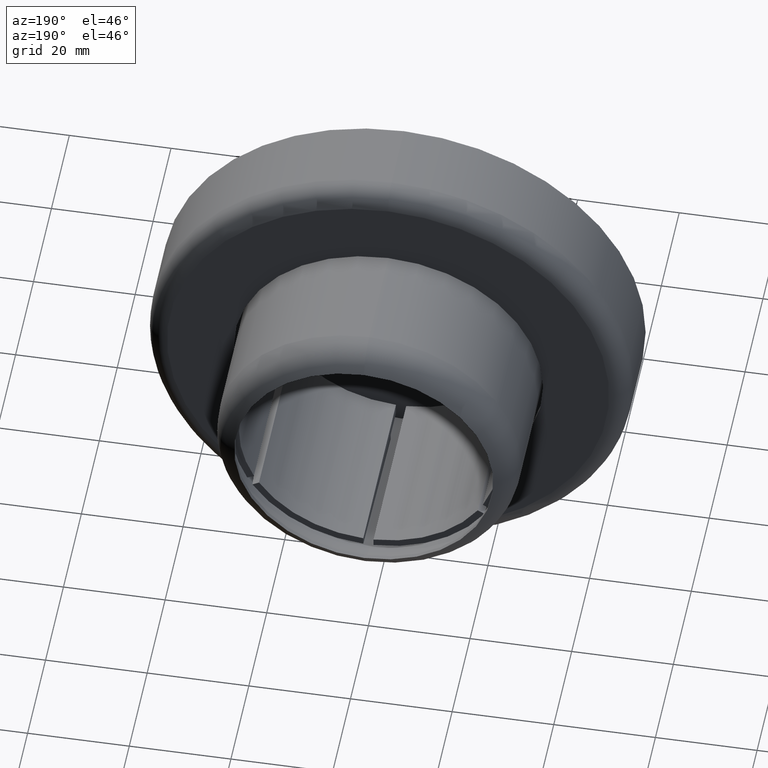
[diagram: clean part render]
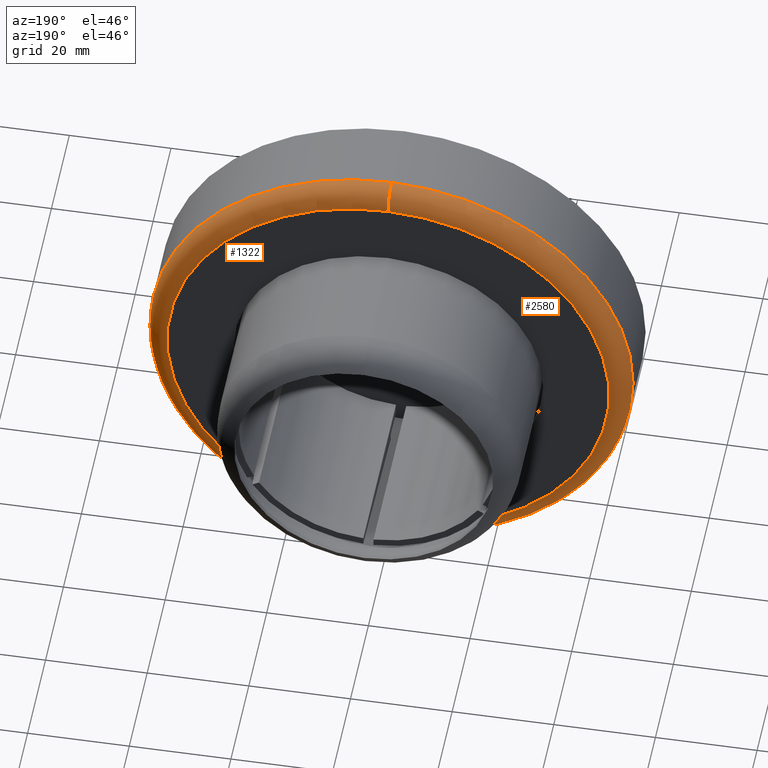
[diagram: same view with one multi-face feature highlighted, each face labeled with its STEP entity id]
A machine part, auxiliary view. The highlighted faces form ONE feature: a constant-radius fillet chain: 2 tangent blend faces with common blend radius 4 mm. The faces share edges in the B-rep.
Their STEP definitions:
[1] entity #1322 (Torus):
#199 = EDGE_LOOP ( 'NONE', ( #1049, #1910, #640, #536 ) ) ;
#215 = AXIS2_PLACEMENT_3D ( 'NONE', #3199, #1316, #2886 ) ;
#255 = DIRECTION ( 'NONE',  ( 0.0000000000000000000, 0.0000000000000000000, 1.000000000000000000 ) ) ;
#438 = AXIS2_PLACEMENT_3D ( 'NONE', #1449, #2488, #3317 ) ;
#536 = ORIENTED_EDGE ( 'NONE', *, *, #2748, .F. ) ;
#538 = DIRECTION ( 'NONE',  ( 0.0000000000000000000, 1.000000000000000000, 0.0000000000000000000 ) ) ;
#553 = VERTEX_POINT ( 'NONE', #3441 ) ;
#640 = ORIENTED_EDGE ( 'NONE', *, *, #2851, .F. ) ;
#692 = VERTEX_POINT ( 'NONE', #2417 ) ;
#735 = TOROIDAL_SURFACE ( 'NONE', #3160, 43.50000000000001400, 4.000000000000000000 ) ;
#738 = AXIS2_PLACEMENT_3D ( 'NONE', #1304, #538, #255 ) ;
#855 = CARTESIAN_POINT ( 'NONE',  ( 0.0000000000000000000, 18.00000000000000000, 43.50000000000001400 ) ) ;
#858 = CIRCLE ( 'NONE', #438, 4.000000000000003600 ) ;
#922 = EDGE_CURVE ( 'NONE', #692, #3372, #2558, .T. ) ;
#1049 = ORIENTED_EDGE ( 'NONE', *, *, #922, .F. ) ;
#1138 = EDGE_CURVE ( 'NONE', #692, #553, #858, .T. ) ;
#1304 = CARTESIAN_POINT ( 'NONE',  ( 0.0000000000000000000, 18.00000000000000000, 0.0000000000000000000 ) ) ;
#1316 = DIRECTION ( 'NONE',  ( -1.000000000000000000, 0.0000000000000000000, 0.0000000000000000000 ) ) ;
#1322 = ADVANCED_FACE ( 'NONE', ( #2823 ), #735, .T. ) ;
#1449 = CARTESIAN_POINT ( 'NONE',  ( 5.327213576290987600E-015, 13.99999999999999800, -43.50000000000001400 ) ) ;
#1620 = DIRECTION ( 'NONE',  ( 0.0000000000000000000, 0.0000000000000000000, 1.000000000000000000 ) ) ;
#1625 = VERTEX_POINT ( 'NONE', #855 ) ;
#1901 = DIRECTION ( 'NONE',  ( -0.0000000000000000000, -1.000000000000000000, -0.0000000000000000000 ) ) ;
#1910 = ORIENTED_EDGE ( 'NONE', *, *, #1138, .T. ) ;
#1970 = AXIS2_PLACEMENT_3D ( 'NONE', #3239, #1901, #1620 ) ;
#2074 = DIRECTION ( 'NONE',  ( 0.0000000000000000000, 1.000000000000000000, 0.0000000000000000000 ) ) ;
#2128 = CIRCLE ( 'NONE', #215, 4.000000000000003600 ) ;
#2417 = CARTESIAN_POINT ( 'NONE',  ( 0.0000000000000000000, 13.99999999999999800, -47.50000000000000700 ) ) ;
#2488 = DIRECTION ( 'NONE',  ( 1.000000000000000000, -0.0000000000000000000, 1.224646799147353200E-016 ) ) ;
#2558 = CIRCLE ( 'NONE', #1970, 47.50000000000000700 ) ;
#2748 = EDGE_CURVE ( 'NONE', #3372, #1625, #2128, .T. ) ;
#2823 = FACE_OUTER_BOUND ( 'NONE', #199, .T. ) ;
#2851 = EDGE_CURVE ( 'NONE', #1625, #553, #3191, .T. ) ;
#2864 = CARTESIAN_POINT ( 'NONE',  ( 0.0000000000000000000, 13.99999999999999800, 0.0000000000000000000 ) ) ;
#2886 = DIRECTION ( 'NONE',  ( 0.0000000000000000000, 0.0000000000000000000, 1.000000000000000000 ) ) ;
#3160 = AXIS2_PLACEMENT_3D ( 'NONE', #2864, #2074, #3439 ) ;
#3191 = CIRCLE ( 'NONE', #738, 43.50000000000001400 ) ;
#3199 = CARTESIAN_POINT ( 'NONE',  ( 0.0000000000000000000, 13.99999999999999800, 43.50000000000001400 ) ) ;
#3239 = CARTESIAN_POINT ( 'NONE',  ( 0.0000000000000000000, 13.99999999999999800, 0.0000000000000000000 ) ) ;
#3317 = DIRECTION ( 'NONE',  ( 1.224646799147351500E-016, 0.0000000000000000000, -1.000000000000000000 ) ) ;
#3372 = VERTEX_POINT ( 'NONE', #3457 ) ;
#3439 = DIRECTION ( 'NONE',  ( 0.0000000000000000000, 0.0000000000000000000, 1.000000000000000000 ) ) ;
#3441 = CARTESIAN_POINT ( 'NONE',  ( 5.572142936120458700E-015, 18.00000000000000000, -43.50000000000001400 ) ) ;
#3457 = CARTESIAN_POINT ( 'NONE',  ( 5.817072295949929000E-015, 13.99999999999999800, 47.50000000000000700 ) ) ;
[2] entity #2580 (Torus):
#112 = CIRCLE ( 'NONE', #2574, 43.50000000000001400 ) ;
#147 = EDGE_CURVE ( 'NONE', #3372, #692, #3464, .T. ) ;
#157 = DIRECTION ( 'NONE',  ( 0.0000000000000000000, 1.000000000000000000, 0.0000000000000000000 ) ) ;
#215 = AXIS2_PLACEMENT_3D ( 'NONE', #3199, #1316, #2886 ) ;
#401 = DIRECTION ( 'NONE',  ( 0.0000000000000000000, 0.0000000000000000000, 1.000000000000000000 ) ) ;
#438 = AXIS2_PLACEMENT_3D ( 'NONE', #1449, #2488, #3317 ) ;
#553 = VERTEX_POINT ( 'NONE', #3441 ) ;
#692 = VERTEX_POINT ( 'NONE', #2417 ) ;
#855 = CARTESIAN_POINT ( 'NONE',  ( 0.0000000000000000000, 18.00000000000000000, 43.50000000000001400 ) ) ;
#858 = CIRCLE ( 'NONE', #438, 4.000000000000003600 ) ;
#1106 = AXIS2_PLACEMENT_3D ( 'NONE', #1790, #2329, #2863 ) ;
#1138 = EDGE_CURVE ( 'NONE', #692, #553, #858, .T. ) ;
#1213 = CARTESIAN_POINT ( 'NONE',  ( 0.0000000000000000000, 13.99999999999999800, 0.0000000000000000000 ) ) ;
#1316 = DIRECTION ( 'NONE',  ( -1.000000000000000000, 0.0000000000000000000, 0.0000000000000000000 ) ) ;
#1374 = EDGE_LOOP ( 'NONE', ( #1710, #3339, #3121, #3192 ) ) ;
#1438 = DIRECTION ( 'NONE',  ( 0.0000000000000000000, 1.000000000000000000, 0.0000000000000000000 ) ) ;
#1449 = CARTESIAN_POINT ( 'NONE',  ( 5.327213576290987600E-015, 13.99999999999999800, -43.50000000000001400 ) ) ;
#1625 = VERTEX_POINT ( 'NONE', #855 ) ;
#1710 = ORIENTED_EDGE ( 'NONE', *, *, #1138, .F. ) ;
#1790 = CARTESIAN_POINT ( 'NONE',  ( 0.0000000000000000000, 13.99999999999999800, 0.0000000000000000000 ) ) ;
#2010 = DIRECTION ( 'NONE',  ( 0.0000000000000000000, 0.0000000000000000000, 1.000000000000000000 ) ) ;
#2108 = EDGE_CURVE ( 'NONE', #553, #1625, #112, .T. ) ;
#2128 = CIRCLE ( 'NONE', #215, 4.000000000000003600 ) ;
#2329 = DIRECTION ( 'NONE',  ( -0.0000000000000000000, -1.000000000000000000, -0.0000000000000000000 ) ) ;
#2417 = CARTESIAN_POINT ( 'NONE',  ( 0.0000000000000000000, 13.99999999999999800, -47.50000000000000700 ) ) ;
#2488 = DIRECTION ( 'NONE',  ( 1.000000000000000000, -0.0000000000000000000, 1.224646799147353200E-016 ) ) ;
#2512 = CARTESIAN_POINT ( 'NONE',  ( 0.0000000000000000000, 18.00000000000000000, 0.0000000000000000000 ) ) ;
#2528 = AXIS2_PLACEMENT_3D ( 'NONE', #1213, #157, #2010 ) ;
#2574 = AXIS2_PLACEMENT_3D ( 'NONE', #2512, #1438, #401 ) ;
#2580 = ADVANCED_FACE ( 'NONE', ( #2593 ), #2767, .T. ) ;
#2593 = FACE_OUTER_BOUND ( 'NONE', #1374, .T. ) ;
#2748 = EDGE_CURVE ( 'NONE', #3372, #1625, #2128, .T. ) ;
#2767 = TOROIDAL_SURFACE ( 'NONE', #2528, 43.50000000000001400, 4.000000000000000000 ) ;
#2863 = DIRECTION ( 'NONE',  ( 0.0000000000000000000, 0.0000000000000000000, 1.000000000000000000 ) ) ;
#2886 = DIRECTION ( 'NONE',  ( 0.0000000000000000000, 0.0000000000000000000, 1.000000000000000000 ) ) ;
#3121 = ORIENTED_EDGE ( 'NONE', *, *, #2748, .T. ) ;
#3192 = ORIENTED_EDGE ( 'NONE', *, *, #2108, .F. ) ;
#3199 = CARTESIAN_POINT ( 'NONE',  ( 0.0000000000000000000, 13.99999999999999800, 43.50000000000001400 ) ) ;
#3317 = DIRECTION ( 'NONE',  ( 1.224646799147351500E-016, 0.0000000000000000000, -1.000000000000000000 ) ) ;
#3339 = ORIENTED_EDGE ( 'NONE', *, *, #147, .F. ) ;
#3372 = VERTEX_POINT ( 'NONE', #3457 ) ;
#3441 = CARTESIAN_POINT ( 'NONE',  ( 5.572142936120458700E-015, 18.00000000000000000, -43.50000000000001400 ) ) ;
#3457 = CARTESIAN_POINT ( 'NONE',  ( 5.817072295949929000E-015, 13.99999999999999800, 47.50000000000000700 ) ) ;
#3464 = CIRCLE ( 'NONE', #1106, 47.50000000000000700 ) ;